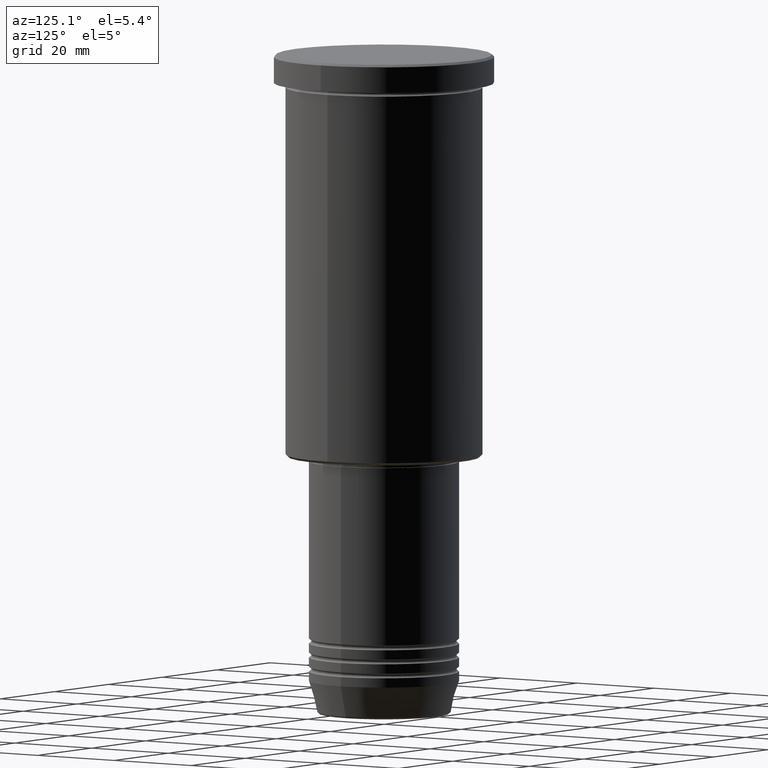
[diagram: clean part render]
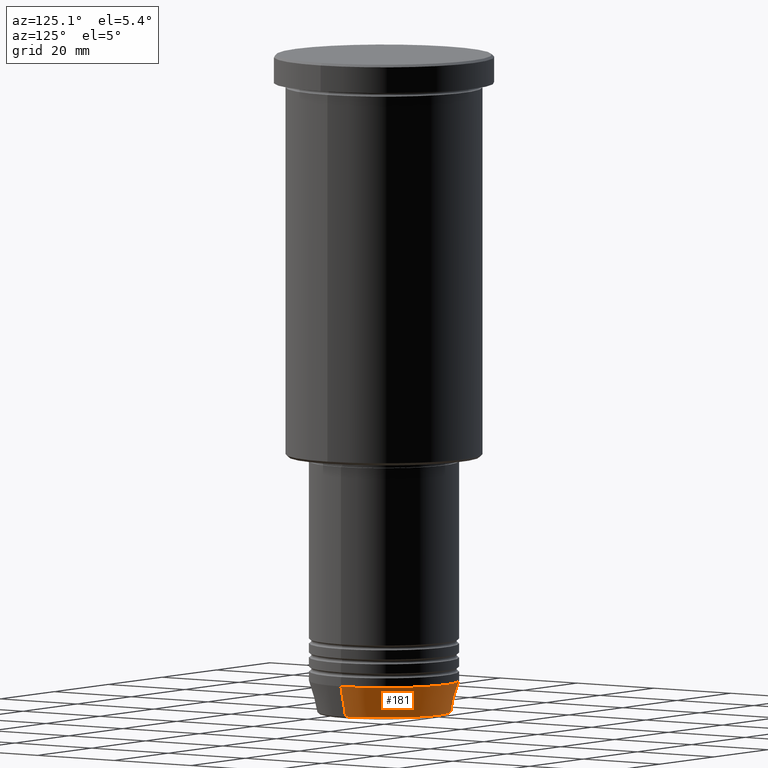
[diagram: same view with one face highlighted and labeled with its STEP entity id]
A machine part, auxiliary view. The second image highlights one B-rep face of the part: STEP entity #181.
In plain terms, the highlighted conical surface has half-angle 15 deg.
Its self-contained STEP definition (entity closure, byte-faithful):
#24 = EDGE_CURVE ( 'NONE', #505, #912, #580, .T. ) ;
#26 = AXIS2_PLACEMENT_3D ( 'NONE', #474, #299, #1037 ) ;
#50 = DIRECTION ( 'NONE',  ( -0.2588190451025213501, 3.169619151431772337E-17, 0.9659258262890680902 ) ) ;
#90 = CARTESIAN_POINT ( 'NONE',  ( 0.000000000000000000, 0.000000000000000000, -140.6294095225512706 ) ) ;
#117 = AXIS2_PLACEMENT_3D ( 'NONE', #90, #541, #1007 ) ;
#127 = DIRECTION ( 'NONE',  ( 0.2588190451025213501, 0.000000000000000000, 0.9659258262890680902 ) ) ;
#131 = CARTESIAN_POINT ( 'NONE',  ( -16.00000000000000000, 1.959434878635765131E-15, -134.0000000000000000 ) ) ;
#167 = EDGE_CURVE ( 'NONE', #801, #992, #696, .T. ) ;
#177 = VECTOR ( 'NONE', #127, 1000.000000000000000 ) ;
#179 = DIRECTION ( 'NONE',  ( 1.000000000000000000, 0.000000000000000000, 0.000000000000000000 ) ) ;
#181 = ADVANCED_FACE ( 'NONE', ( #416 ), #969, .T. ) ;
#194 = AXIS2_PLACEMENT_3D ( 'NONE', #1010, #637, #179 ) ;
#294 = CARTESIAN_POINT ( 'NONE',  ( 14.22365507213718772, 0.000000000000000000, -140.6294095225512706 ) ) ;
#299 = DIRECTION ( 'NONE',  ( -0.000000000000000000, -0.000000000000000000, 1.000000000000000000 ) ) ;
#319 = EDGE_CURVE ( 'NONE', #505, #801, #1033, .T. ) ;
#416 = FACE_OUTER_BOUND ( 'NONE', #1022, .T. ) ;
#474 = CARTESIAN_POINT ( 'NONE',  ( 0.000000000000000000, 0.000000000000000000, -134.0000000000000000 ) ) ;
#505 = VERTEX_POINT ( 'NONE', #294 ) ;
#530 = ORIENTED_EDGE ( 'NONE', *, *, #24, .F. ) ;
#541 = DIRECTION ( 'NONE',  ( -0.000000000000000000, -0.000000000000000000, 1.000000000000000000 ) ) ;
#580 = LINE ( 'NONE', #946, #177 ) ;
#637 = DIRECTION ( 'NONE',  ( -0.000000000000000000, -0.000000000000000000, 1.000000000000000000 ) ) ;
#696 = LINE ( 'NONE', #131, #1148 ) ;
#727 = ORIENTED_EDGE ( 'NONE', *, *, #167, .T. ) ;
#801 = VERTEX_POINT ( 'NONE', #1122 ) ;
#867 = CARTESIAN_POINT ( 'NONE',  ( -16.00000000000000000, 1.959434878635765131E-15, -134.0000000000000000 ) ) ;
#879 = CIRCLE ( 'NONE', #194, 16.00000000000000000 ) ;
#912 = VERTEX_POINT ( 'NONE', #1108 ) ;
#946 = CARTESIAN_POINT ( 'NONE',  ( 16.00000000000000000, 0.000000000000000000, -134.0000000000000000 ) ) ;
#969 = CONICAL_SURFACE ( 'NONE', #26, 16.00000000000000000, 0.2617993877991500740 ) ;
#992 = VERTEX_POINT ( 'NONE', #867 ) ;
#1007 = DIRECTION ( 'NONE',  ( 1.000000000000000000, 0.000000000000000000, 0.000000000000000000 ) ) ;
#1010 = CARTESIAN_POINT ( 'NONE',  ( 0.000000000000000000, 0.000000000000000000, -134.0000000000000000 ) ) ;
#1022 = EDGE_LOOP ( 'NONE', ( #1102, #727, #1152, #530 ) ) ;
#1033 = CIRCLE ( 'NONE', #117, 14.22365507213718772 ) ;
#1037 = DIRECTION ( 'NONE',  ( 1.000000000000000000, 0.000000000000000000, 0.000000000000000000 ) ) ;
#1102 = ORIENTED_EDGE ( 'NONE', *, *, #319, .T. ) ;
#1108 = CARTESIAN_POINT ( 'NONE',  ( 16.00000000000000000, 0.000000000000000000, -134.0000000000000000 ) ) ;
#1122 = CARTESIAN_POINT ( 'NONE',  ( -14.22365507213718772, 1.850665122131323337E-15, -140.6294095225512706 ) ) ;
#1148 = VECTOR ( 'NONE', #50, 1000.000000000000000 ) ;
#1152 = ORIENTED_EDGE ( 'NONE', *, *, #1161, .F. ) ;
#1161 = EDGE_CURVE ( 'NONE', #912, #992, #879, .T. ) ;